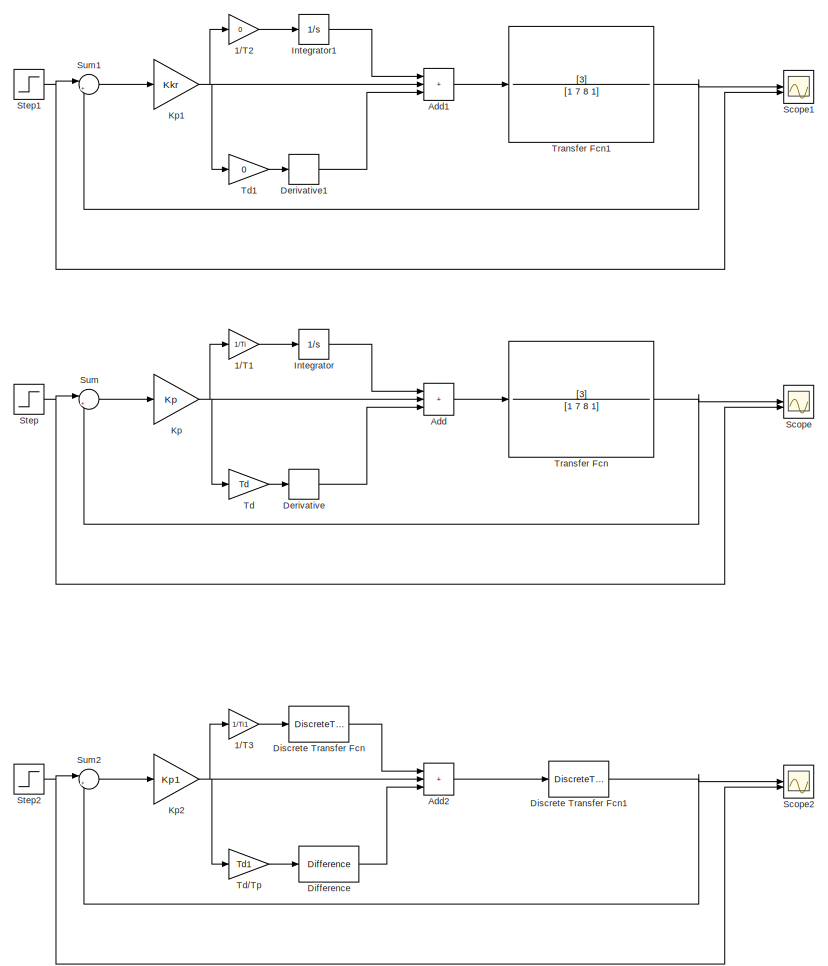
[diagram: root canvas - part 1/3, top right region]
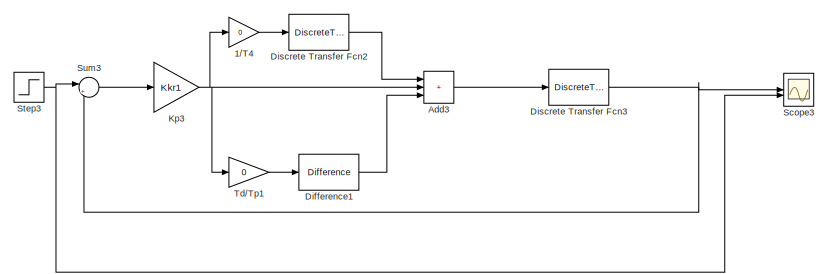
[diagram: root canvas - part 2/3, middle left region]
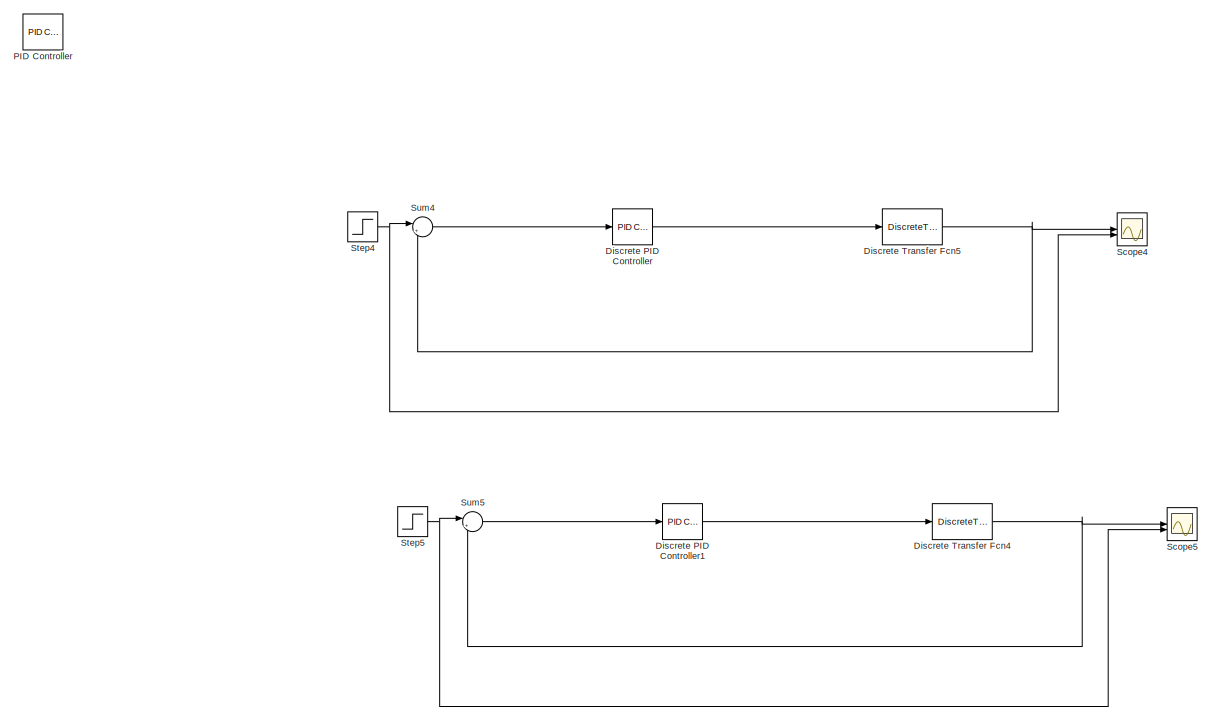
[diagram: root canvas - part 3/3, bottom right region]
MODEL slx_472af027e455
KIND model
CONFIG AbsTol = auto
CONFIG EnableMultiTasking = off
CONFIG FixedStep = auto
CONFIG MaxStep = 0.01
CONFIG MinStep = auto
CONFIG RelTol = 1e-3
CONFIG SampleTimeConstraint = Unconstrained
CONFIG SolverName = VariableStepAuto
CONFIG StartTime = 0.0
CONFIG StopTime = 100
BLOCK [Gain] 1//T1
  Gain = 1/Ti
BLOCK [Gain] 1//T2
  Gain = 0
BLOCK [Gain] 1//T3
  Gain = 1/Ti1
BLOCK [Gain] 1//T4
  Gain = 0
BLOCK [Sum] Add
  IconShape = rectangular
  Inputs = +++
BLOCK [Sum] Add1
  IconShape = rectangular
  Inputs = +++
BLOCK [Sum] Add2
  IconShape = rectangular
  Inputs = +++
BLOCK [Sum] Add3
  IconShape = rectangular
  Inputs = +++
BLOCK [Derivative] Derivative
BLOCK [Derivative] Derivative1
BLOCK [Reference] Difference  REF=simulink/Discrete/Difference
  SourceBlock = simulink/Discrete/Difference
  SourceType = Difference
BLOCK [Reference] Difference1  REF=simulink/Discrete/Difference
  SourceBlock = simulink/Discrete/Difference
  SourceType = Difference
BLOCK [Reference] Discrete PID Controller  REF=slpidlib/PID Controller
  LibrarySourceBlock = simulink/Discrete/Discrete PID Controller
  SourceBlock = slpidlib/PID Controller
  SourceType = PID 1dof
BLOCK [Reference] Discrete PID Controller1  REF=slpidlib/PID Controller
  LibrarySourceBlock = simulink/Discrete/Discrete PID Controller
  SourceBlock = slpidlib/PID Controller
  SourceType = PID 1dof
BLOCK [DiscreteTransferFcn] Discrete Transfer Fcn
  Denominator = [1 -1]
  InputPortMap = u0
  Numerator = [1 0]
  SampleTime = tp
BLOCK [DiscreteTransferFcn] Discrete Transfer Fcn1
  Denominator = md
  InputPortMap = u0
  Numerator = ld
  SampleTime = tp
BLOCK [DiscreteTransferFcn] Discrete Transfer Fcn2
  Denominator = [1 -1]
  InputPortMap = u0
  Numerator = [1 0]
  SampleTime = tp
BLOCK [DiscreteTransferFcn] Discrete Transfer Fcn3
  Denominator = md
  InputPortMap = u0
  Numerator = ld
  SampleTime = tp
BLOCK [DiscreteTransferFcn] Discrete Transfer Fcn4
  Denominator = md
  InputPortMap = u0
  Numerator = ld
  SampleTime = tp
BLOCK [DiscreteTransferFcn] Discrete Transfer Fcn5
  Denominator = md
  InputPortMap = u0
  Numerator = ld
  SampleTime = tp
BLOCK [Integrator] Integrator
BLOCK [Integrator] Integrator1
BLOCK [Gain] Kp
  Gain = Kp
BLOCK [Gain] Kp1
  Gain = Kkr
BLOCK [Gain] Kp2
  Gain = Kp1
BLOCK [Gain] Kp3
  Gain = Kkr1
BLOCK [Reference] PID Controller  REF=slpidlib/PID Controller
  LibrarySourceBlock = simulink/Continuous/PID Controller
  SourceBlock = slpidlib/PID Controller
  SourceType = PID 1dof
BLOCK [Scope] Scope
  Floating = off
  NumInputPorts = 2
  ScopeSpecificationString = Simulink.scopes.TimeScopeBlockCfg('CurrentConfiguration', extmgr.ConfigurationSet(extmgr.Configuration('Core','General UI',true,'FigureColor',[1 1 1]),extmgr.Configuration('Core','Source UI',true),extmgr.Configuration('Sources','WiredSimulink',true),extmgr.Configuration('Visuals','Time Domain',true,'SerializedDisplays',{struct('MinYLimReal','-0.1775','MaxYLimReal','1.5975','YLabelReal','','MinYLim...<+1615ch>
BLOCK [Scope] Scope1
  Floating = off
  NumInputPorts = 2
  ScopeSpecificationString = Simulink.scopes.TimeScopeBlockCfg('CurrentConfiguration', extmgr.ConfigurationSet(extmgr.Configuration('Core','General UI',true,'FigureColor',[1 1 1]),extmgr.Configuration('Core','Source UI',true),extmgr.Configuration('Sources','WiredSimulink',true,'DataLoggingVariableName','ScopeData1'),extmgr.Configuration('Visuals','Time Domain',true,'SerializedDisplays',{struct('MinYLimReal','-0.23614','MaxYLi...<+1662ch>
BLOCK [Scope] Scope2
  Floating = off
  NumInputPorts = 2
  ScopeSpecificationString = Simulink.scopes.TimeScopeBlockCfg('CurrentConfiguration', extmgr.ConfigurationSet(extmgr.Configuration('Core','General UI',true,'FigureColor',[1 1 1]),extmgr.Configuration('Core','Source UI',true),extmgr.Configuration('Sources','WiredSimulink',true,'DataLoggingVariableName','ScopeData2'),extmgr.Configuration('Visuals','Time Domain',true,'SerializedDisplays',{struct('MinYLimReal','-0.21733','MaxYLi...<+1671ch>
BLOCK [Scope] Scope3
  Floating = off
  NumInputPorts = 2
  ScopeSpecificationString = Simulink.scopes.TimeScopeBlockCfg('CurrentConfiguration', extmgr.ConfigurationSet(extmgr.Configuration('Core','General UI',true,'FigureColor',[1 1 1]),extmgr.Configuration('Core','Source UI',true),extmgr.Configuration('Sources','WiredSimulink',true,'DataLoggingVariableName','ScopeData3'),extmgr.Configuration('Visuals','Time Domain',true,'SerializedDisplays',{struct('MinYLimReal','-0.23252','MaxYLi...<+2029ch>
BLOCK [Scope] Scope4
  Floating = off
  NumInputPorts = 2
  ScopeSpecificationString = Simulink.scopes.TimeScopeBlockCfg('CurrentConfiguration', extmgr.ConfigurationSet(extmgr.Configuration('Core','General UI',true,'FigureColor',[1 1 1]),extmgr.Configuration('Core','Source UI',true),extmgr.Configuration('Sources','WiredSimulink',true,'DataLoggingVariableName','ScopeData4'),extmgr.Configuration('Visuals','Time Domain',true,'SerializedDisplays',{struct('MinYLimReal','-114321731.29325'...<+1733ch>
BLOCK [Scope] Scope5
  Floating = off
  NumInputPorts = 2
  ScopeSpecificationString = Simulink.scopes.TimeScopeBlockCfg('CurrentConfiguration', extmgr.ConfigurationSet(extmgr.Configuration('Core','General UI',true,'FigureColor',[1 1 1]),extmgr.Configuration('Core','Source UI',true),extmgr.Configuration('Sources','WiredSimulink',true,'DataLoggingVariableName','ScopeData5'),extmgr.Configuration('Visuals','Time Domain',true,'SerializedDisplays',{struct('MinYLimReal','-114321731.29325'...<+1733ch>
BLOCK [Step] Step
  SampleTime = 0
BLOCK [Step] Step1
  SampleTime = 0
BLOCK [Step] Step2
  SampleTime = 0
BLOCK [Step] Step3
  SampleTime = 0
BLOCK [Step] Step4
  SampleTime = 0
BLOCK [Step] Step5
  SampleTime = 0
BLOCK [Sum] Sum
  Inputs = |+-
BLOCK [Sum] Sum1
  Inputs = |+-
BLOCK [Sum] Sum2
  Inputs = |+-
BLOCK [Sum] Sum3
  Inputs = |+-
BLOCK [Sum] Sum4
  Inputs = |+-
BLOCK [Sum] Sum5
  Inputs = |+-
BLOCK [Gain] Td
  Gain = Td
BLOCK [Gain] Td//Tp
  Gain = Td1
BLOCK [Gain] Td//Tp1
  Gain = 0
BLOCK [Gain] Td1
  Gain = 0
BLOCK [TransferFcn] Transfer Fcn
  Denominator = [1 7 8 1]
  Numerator = [3]
BLOCK [TransferFcn] Transfer Fcn1
  Denominator = [1 7 8 1]
  Numerator = [3]
LINE 1//T1:1 -> Integrator:1
LINE 1//T2:1 -> Integrator1:1
LINE 1//T3:1 -> Discrete Transfer Fcn:1
LINE 1//T4:1 -> Discrete Transfer Fcn2:1
LINE Add1:1 -> Transfer Fcn1:1
LINE Add2:1 -> Discrete Transfer Fcn1:1
LINE Add3:1 -> Discrete Transfer Fcn3:1
LINE Add:1 -> Transfer Fcn:1
LINE Derivative1:1 -> Add1:3
LINE Derivative:1 -> Add:3
LINE Difference1:1 -> Add3:3
LINE Difference:1 -> Add2:3
LINE Discrete PID Controller1:1 -> Discrete Transfer Fcn4:1
LINE Discrete PID Controller:1 -> Discrete Transfer Fcn5:1
NET Discrete Transfer Fcn1:1 -> Scope2:1, Sum2:2
LINE Discrete Transfer Fcn2:1 -> Add3:1
NET Discrete Transfer Fcn3:1 -> Scope3:1, Sum3:2
NET Discrete Transfer Fcn4:1 -> Scope5:1, Sum5:2
NET Discrete Transfer Fcn5:1 -> Scope4:1, Sum4:2
LINE Discrete Transfer Fcn:1 -> Add2:1
LINE Integrator1:1 -> Add1:1
LINE Integrator:1 -> Add:1
NET Kp1:1 -> 1//T2:1, Add1:2, Td1:1
NET Kp2:1 -> 1//T3:1, Add2:2, Td//Tp:1
NET Kp3:1 -> 1//T4:1, Add3:2, Td//Tp1:1
NET Kp:1 -> 1//T1:1, Add:2, Td:1
NET Step1:1 -> Scope1:2, Sum1:1
NET Step2:1 -> Scope2:2, Sum2:1
NET Step3:1 -> Scope3:2, Sum3:1
NET Step4:1 -> Scope4:2, Sum4:1
NET Step5:1 -> Scope5:2, Sum5:1
NET Step:1 -> Scope:2, Sum:1
LINE Sum1:1 -> Kp1:1
LINE Sum2:1 -> Kp2:1
LINE Sum3:1 -> Kp3:1
LINE Sum4:1 -> Discrete PID Controller:1
LINE Sum5:1 -> Discrete PID Controller1:1
LINE Sum:1 -> Kp:1
LINE Td//Tp1:1 -> Difference1:1
LINE Td//Tp:1 -> Difference:1
LINE Td1:1 -> Derivative1:1
LINE Td:1 -> Derivative:1
NET Transfer Fcn1:1 -> Scope1:1, Sum1:2
NET Transfer Fcn:1 -> Scope:1, Sum:2
note: NET lines group one-source signal fan-out (src -> all destinations, sorted); 1:1 wires keep LINE
